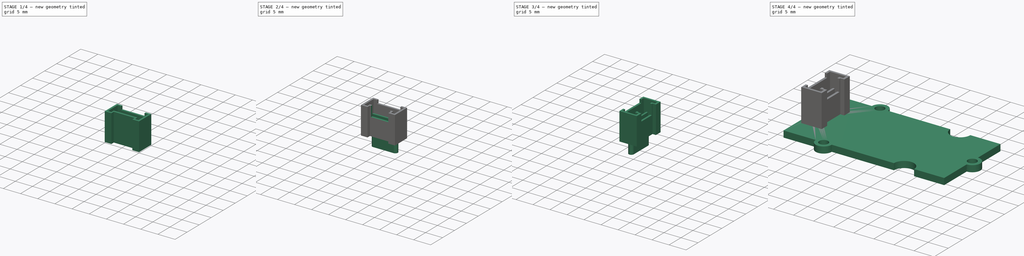
[diagram: build sequence overview — one tinted view per stage of 4, left to right]
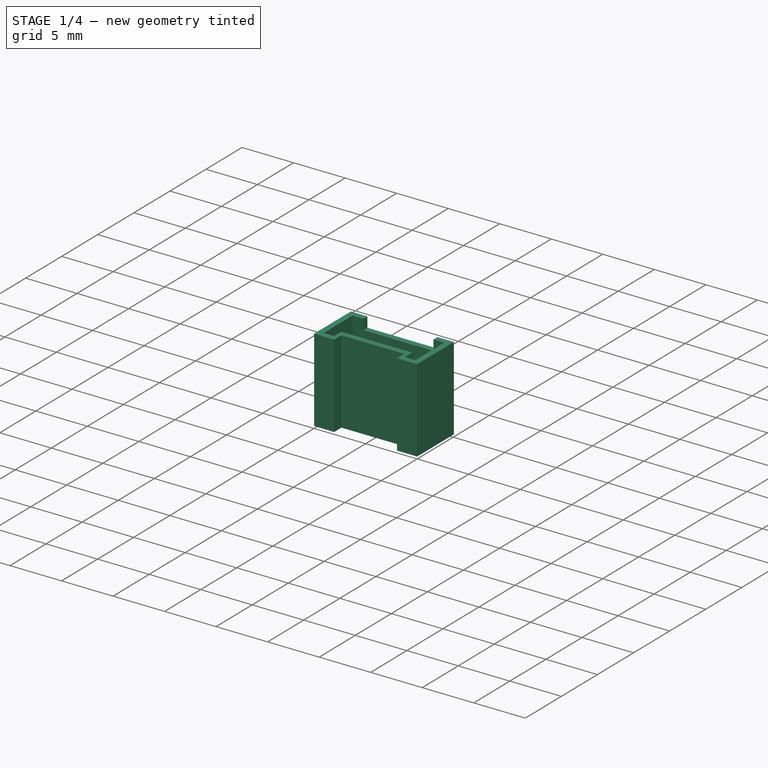
[diagram: stage 1 of 4 — iso view after this stage's code; geometry added in this stage tinted green]
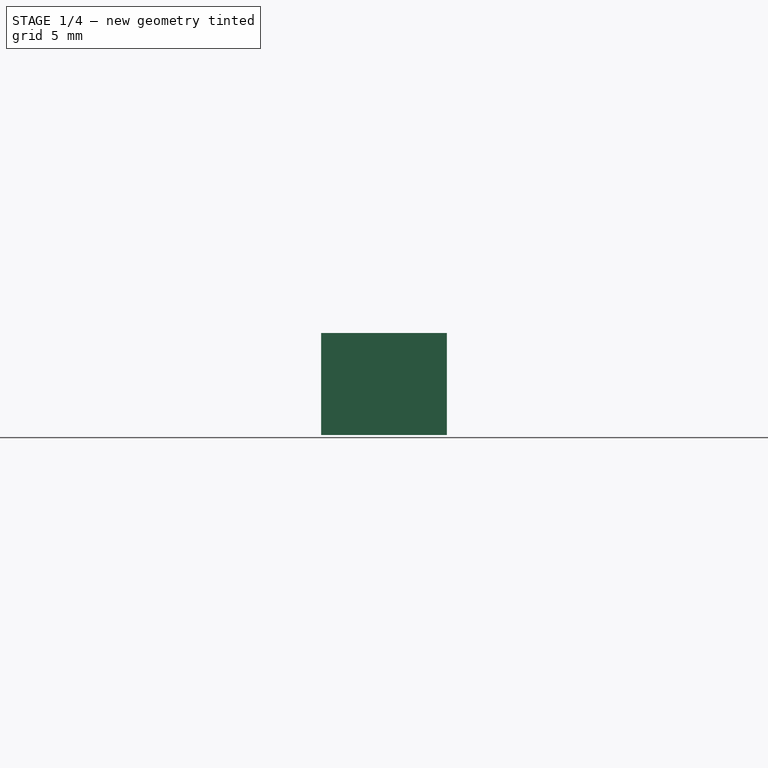
[diagram: stage 1 of 4 — front view after this stage's code; geometry added in this stage tinted green]
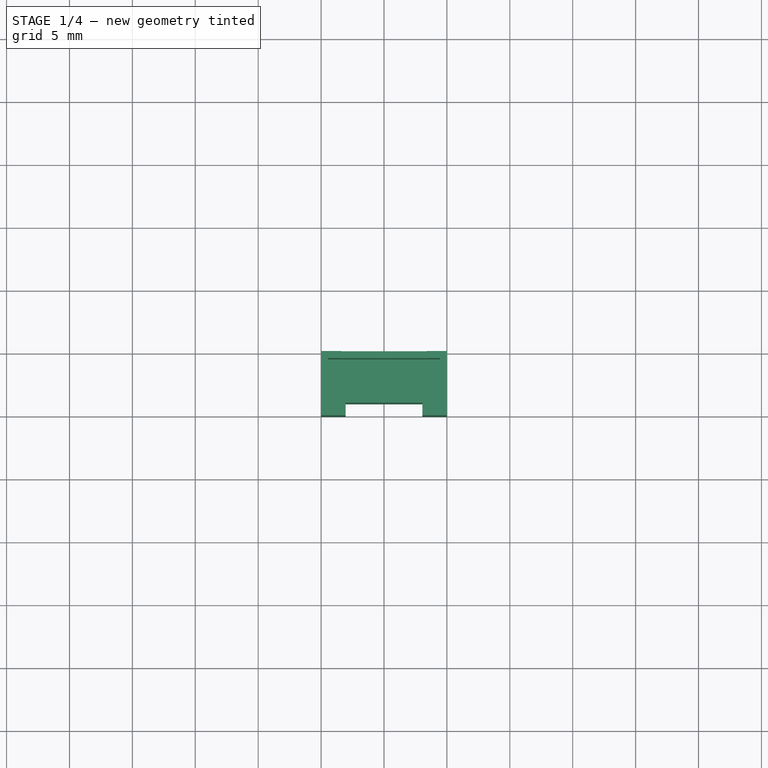
[diagram: stage 1 of 4 — top view after this stage's code; geometry added in this stage tinted green]
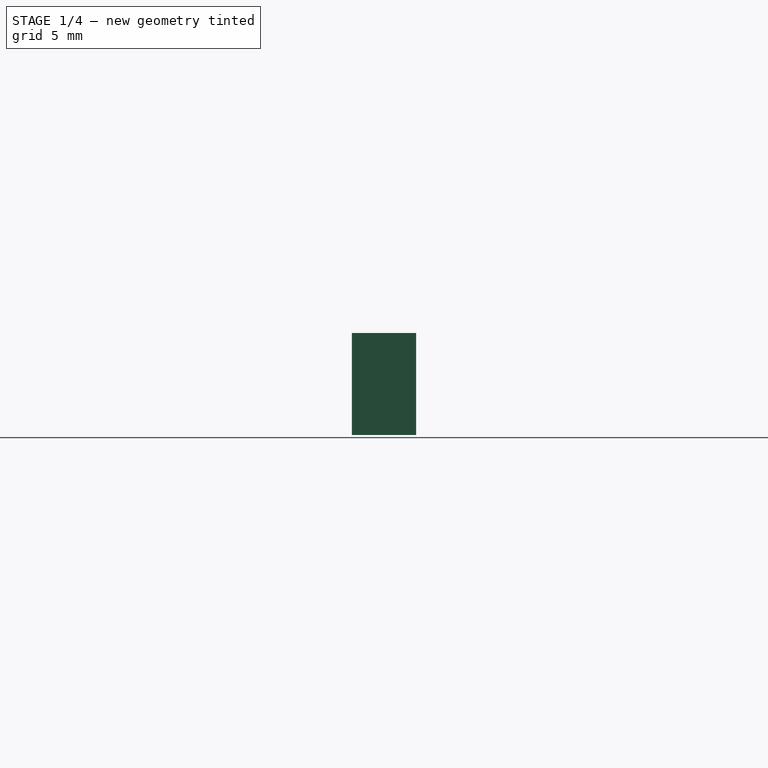
[diagram: stage 1 of 4 — right view after this stage's code; geometry added in this stage tinted green]
FCSTD DOCUMENT  (FreeCAD 0.19R24276 (Git))
Label: Grove_I2CHub6
License: All rights reserved
LicenseURL: http://en.wikipedia.org/wiki/All_rights_reserved
objects: Sketcher::SketchObject×8, PartDesign::Body×7, PartDesign::FeatureBase×5, PartDesign::Pad×4, PartDesign::Pocket×4, App::Part×1
note: 36 computed .brp shape members not serialized (recipe doc carries the construction recipe); baked Part::Feature solids carry a one-line shape summary decoded from their .brp

FEATURE [PartDesign::Body] Body  label="GroveDBoard"
  Group = -> [Sketch,Pad,Sketch001,Pocket]
  Origin = -> Origin001
  Tip = -> Pocket
FEATURE [Sketcher::SketchObject] Sketch008
  FullyConstrained = true
  MapMode = 5
  Support = -> [XY_Plane007]
  sketch-geometry (8):
    g0: LineSegment StartX=-5 StartY=0 StartZ=0 EndX=-3.05 EndY=0 EndZ=0
    g1: LineSegment StartX=3.05 StartY=0 StartZ=0 EndX=5 EndY=0 EndZ=0
    g2: LineSegment StartX=-5 StartY=0 StartZ=0 EndX=-5 EndY=5.1 EndZ=0
    g3: LineSegment StartX=-5 StartY=5.1 StartZ=0 EndX=5 EndY=5.1 EndZ=0
    g4: LineSegment StartX=5 StartY=5.1 StartZ=0 EndX=5 EndY=0 EndZ=0
    g5: LineSegment StartX=3.05 StartY=0 StartZ=0 EndX=3.05 EndY=1 EndZ=0
    g6: LineSegment StartX=3.05 StartY=1 StartZ=0 EndX=-3.05 EndY=1 EndZ=0
    g7: LineSegment StartX=-3.05 StartY=1 StartZ=0 EndX=-3.05 EndY=0 EndZ=0
  constraints (23):
    c: PointOnObject(g0,g-1)
    c: PointOnObject(g1,g-1)
    c: PointOnObject(g0,g-1)
    c: Coincident(g2,g0)
    c: Vertical(g2)
    c: Coincident(g3,g2)
    c: Horizontal(g3)
    c: Coincident(g4,g3)
    c: Coincident(g4,g1)
    c: Vertical(g4)
    c: Coincident(g5,g1)
    c: Vertical(g5)
    c: Coincident(g6,g5)
    c: Horizontal(g6)
    c: Coincident(g7,g6)
    c: Coincident(g7,g0)
    c: Vertical(g7)
    c: Equal(g0,g1)
    c: Symmetric(g0,g1,g-1)
    c: Distance(g4) = 5.1
    c: Distance(g6) = 6.1
    c: Distance(g3) = 10
    c: Distance(g7) = 1
FEATURE [PartDesign::Pad] Pad005
  Direction = (1,1,1)
  Length = 8.1
  Length2 = 100
  Profile = -> Sketch008
  Type = 0
FEATURE [Sketcher::SketchObject] Sketch009
  FullyConstrained = true
  MapMode = 5
  Placement = pos=(0,0,8.1) rot=(0,0,1;0rad)
  Support = -> [Pad005]
  sketch-geometry (10):
    g0: LineSegment StartX=-4.45 StartY=0.55 StartZ=0 EndX=-3.45 EndY=0.55 EndZ=0
    g1: LineSegment StartX=-3.45 StartY=0.55 StartZ=0 EndX=-3.45 EndY=1.55 EndZ=0
    g2: LineSegment StartX=-3.45 StartY=1.55 StartZ=0 EndX=3.45 EndY=1.55 EndZ=0
    g3: LineSegment StartX=3.45 StartY=1.55 StartZ=0 EndX=3.45 EndY=0.55 EndZ=0
    g4: LineSegment StartX=3.45 StartY=0.55 StartZ=0 EndX=4.45 EndY=0.55 EndZ=0
    g5: LineSegment StartX=4.45 StartY=0.55 StartZ=0 EndX=4.45 EndY=4.55 EndZ=0
    g6: LineSegment StartX=4.45 StartY=4.55 StartZ=0 EndX=-4.45 EndY=4.55 EndZ=0
    g7: LineSegment StartX=-4.45 StartY=4.55 StartZ=0 EndX=-4.45 EndY=0.55 EndZ=0
    g8: LineSegment StartX=-3.45 StartY=0.55 StartZ=0 EndX=3.45 EndY=0.55 EndZ=0
    g9: LineSegment StartX=0 StartY=0 StartZ=0 EndX=0 EndY=0.55 EndZ=0
  constraints (28):
    c: Horizontal(g0)
    c: Coincident(g1,g0)
    c: Coincident(g2,g1)
    c: Horizontal(g2)
    c: Coincident(g3,g2)
    c: Vertical(g3)
    c: Coincident(g4,g3)
    c: Horizontal(g4)
    c: Coincident(g5,g4)
    c: Vertical(g5)
    c: Coincident(g6,g5)
    c: Horizontal(g6)
    c: Coincident(g7,g6)
    c: Coincident(g7,g0)
    c: Vertical(g7)
    c: Vertical(g1)
    c: Coincident(g8,g0)
    c: Coincident(g8,g3)
    c: Horizontal(g8)
    c: Equal(g0,g4)
    c: Coincident(g9,g-1)
    c: PointOnObject(g9,g-2)
    c: Symmetric(g0,g3,g9)
    c: Distance(g0) = 1
    c: Distance(g1) = 1
    c: Distance(g9) = 0.55
    c: Distance(g6) = 8.9
    c: DistanceY(g2,g5) = 3
FEATURE [PartDesign::Pocket] Pocket003
  BaseFeature = -> Pad005
  Length = 7
  Length2 = 100
  Profile = -> Sketch009
  Type = 0
FEATURE [Sketcher::SketchObject] Sketch010
  FullyConstrained = true
  MapMode = 5
  Placement = pos=(0,0,8.1) rot=(0,0,1;0rad)
  Support = -> [Pocket003]
  sketch-geometry (5):
    g0: LineSegment StartX=0 StartY=0 StartZ=0 EndX=0 EndY=3 EndZ=0
    g1: LineSegment StartX=-3.4 StartY=8 StartZ=0 EndX=3.4 EndY=8 EndZ=0
    g2: LineSegment StartX=3.4 StartY=8 StartZ=0 EndX=3.4 EndY=3 EndZ=0
    g3: LineSegment StartX=3.4 StartY=3 StartZ=0 EndX=-3.4 EndY=3 EndZ=0
    g4: LineSegment StartX=-3.4 StartY=3 StartZ=0 EndX=-3.4 EndY=8 EndZ=0
  constraints (14):
    c: Coincident(g0,g-1)
    c: PointOnObject(g0,g-2)
    c: Coincident(g1,g2)
    c: Coincident(g2,g3)
    c: Coincident(g3,g4)
    c: Coincident(g4,g1)
    c: Horizontal(g1)
    c: Horizontal(g3)
    c: Vertical(g2)
    c: Vertical(g4)
    c: Symmetric(g3,g2,g0)
    c: Distance(g0) = 3
    c: Distance(g2) = 5
    c: Distance(g1) = 6.8
FEATURE [PartDesign::Pocket] Pocket004
  BaseFeature = -> Pocket003
  Length = 1
  Length2 = 100
  Profile = -> Sketch010
  Type = 0
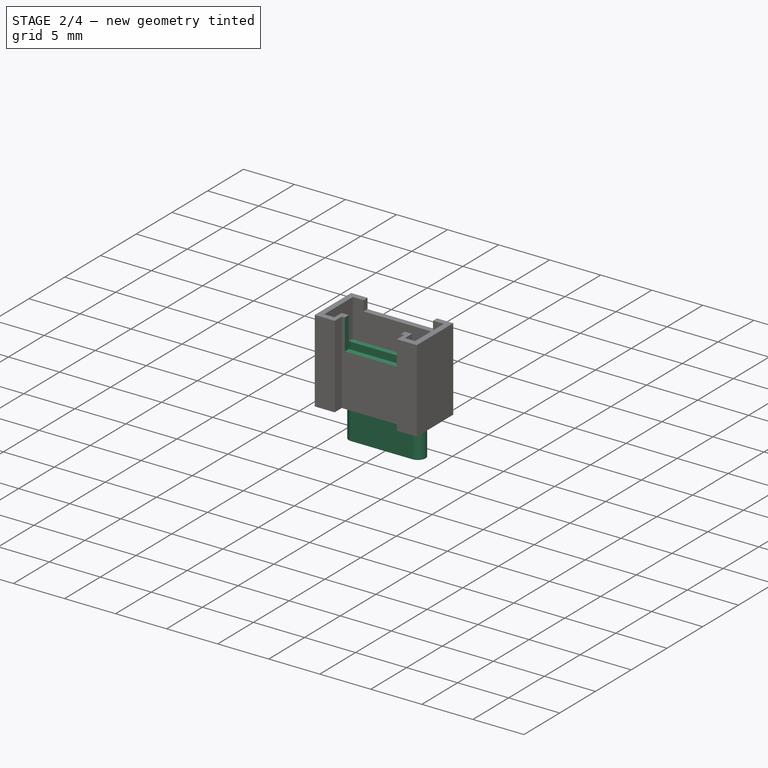
[diagram: stage 2 of 4 — iso view after this stage's code; geometry added in this stage tinted green]
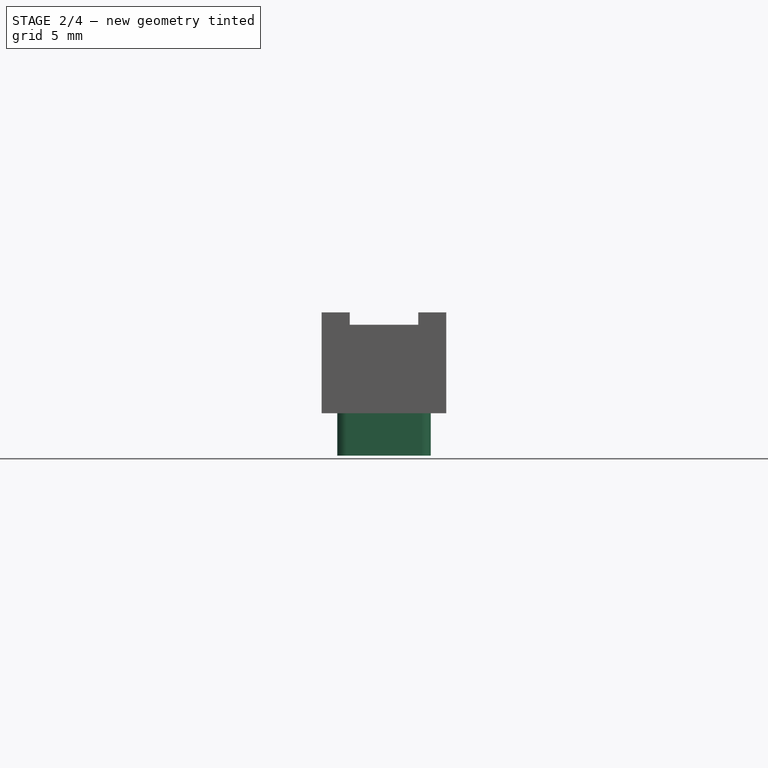
[diagram: stage 2 of 4 — front view after this stage's code; geometry added in this stage tinted green]
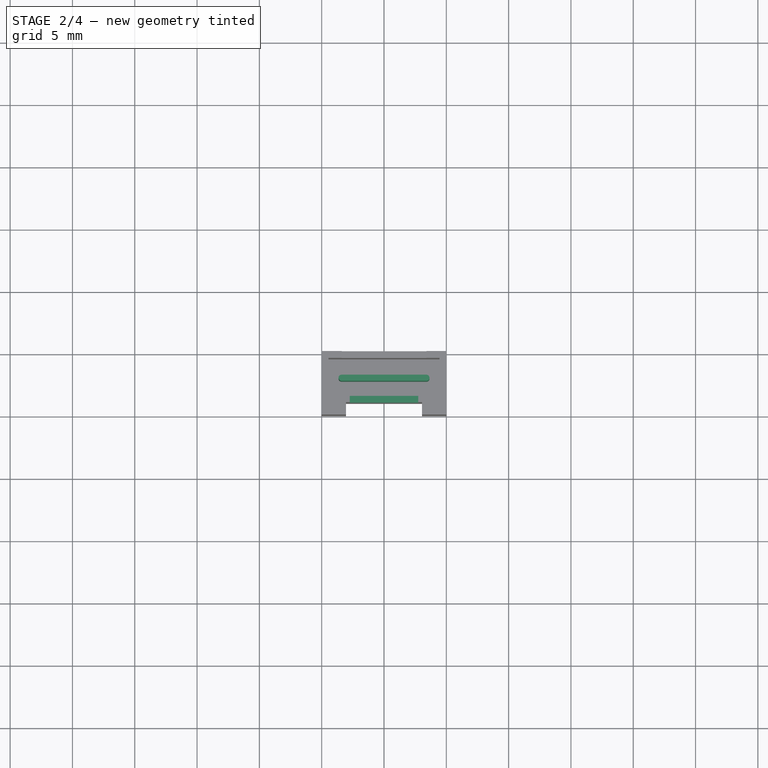
[diagram: stage 2 of 4 — top view after this stage's code; geometry added in this stage tinted green]
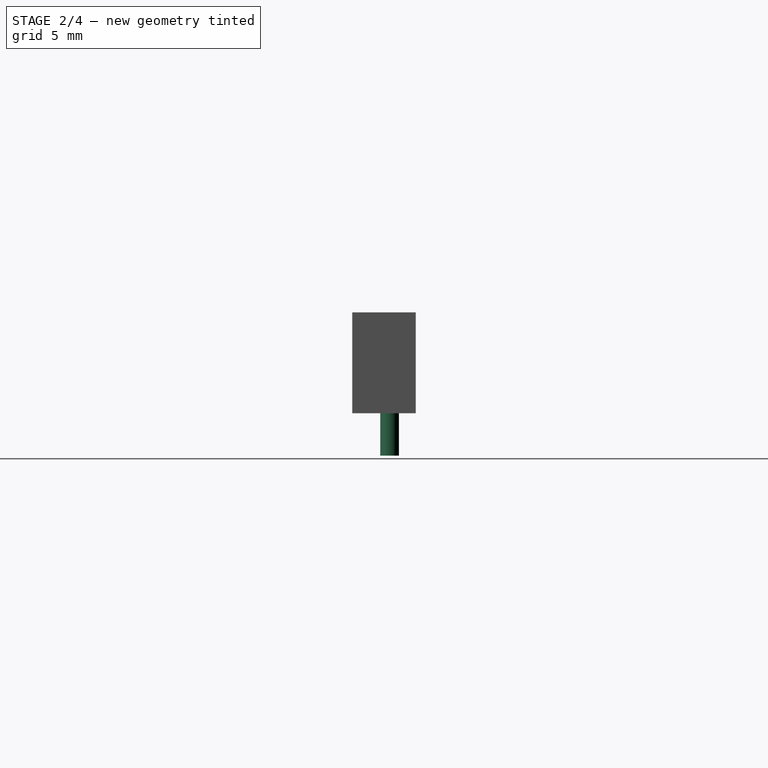
[diagram: stage 2 of 4 — right view after this stage's code; geometry added in this stage tinted green]
FEATURE [Sketcher::SketchObject] Sketch011
  FullyConstrained = true
  MapMode = 5
  Placement = pos=(0,0,8.1) rot=(0,0,1;0rad)
  Support = -> [Pocket004]
  sketch-geometry (4):
    g0: LineSegment StartX=-2.75 StartY=3 StartZ=0 EndX=2.75 EndY=3 EndZ=0
    g1: LineSegment StartX=2.75 StartY=3 StartZ=0 EndX=2.75 EndY=0 EndZ=0
    g2: LineSegment StartX=2.75 StartY=0 StartZ=0 EndX=-2.75 EndY=0 EndZ=0
    g3: LineSegment StartX=-2.75 StartY=0 StartZ=0 EndX=-2.75 EndY=3 EndZ=0
  constraints (11):
    c: Coincident(g0,g1)
    c: Coincident(g1,g2)
    c: Coincident(g2,g3)
    c: Coincident(g3,g0)
    c: Horizontal(g0)
    c: Horizontal(g2)
    c: Vertical(g1)
    c: Vertical(g3)
    c: Symmetric(g2,g1,g-1)
    c: Distance(g1) = 3
    c: Distance(g0) = 5.5
FEATURE [PartDesign::Pocket] Pocket005
  BaseFeature = -> Pocket004
  Length = 3
  Length2 = 100
  Profile = -> Sketch011
  Type = 0
FEATURE [Sketcher::SketchObject] Sketch012
  FullyConstrained = true
  MapMode = 5
  Placement = pos=(0,0,1.1) rot=(0,0,1;0rad)
  Support = -> [Pocket005]
  sketch-geometry (5):
    g0: ArcOfCircle CenterX=-3.4 CenterY=3 CenterZ=0 NormalX=0 NormalY=0 NormalZ=1 AngleXU=0 Radius=0.25 StartAngle=1.5708 EndAngle=4.71239
    g1: ArcOfCircle CenterX=3.4 CenterY=3 CenterZ=0 NormalX=0 NormalY=0 NormalZ=1 AngleXU=0 Radius=0.25 StartAngle=4.71239 EndAngle=7.85398
    g2: LineSegment StartX=-3.4 StartY=2.75 StartZ=0 EndX=3.4 EndY=2.75 EndZ=0
    g3: LineSegment StartX=-3.4 StartY=3.25 StartZ=0 EndX=3.4 EndY=3.25 EndZ=0
    g4: LineSegment StartX=0 StartY=0 StartZ=0 EndX=0 EndY=2.75 EndZ=0
  constraints (12):
    c: Tangent(g0,g3) = 1.5708
    c: Tangent(g0,g2) = -1.5708
    c: Tangent(g2,g1) = -1.5708
    c: Tangent(g3,g1) = 1.5708
    c: Horizontal(g2)
    c: Equal(g0,g1)
    c: Coincident(g4,g-1)
    c: PointOnObject(g4,g-2)
    c: Symmetric(g0,g1,g4)
    c: DistanceY(g-1,g1) = 3
    c: DistanceY(g1,g1) = 0.5
    c: DistanceX(g0,g1) = 6.8
FEATURE [PartDesign::Pad] Pad006
  BaseFeature = -> Pocket005
  Direction = (1,1,1)
  Length = 4
  Length2 = 100
  Profile = -> Sketch012
  Type = 0
FEATURE [Sketcher::SketchObject] Sketch013
  FullyConstrained = true
  MapMode = 5
  Support = -> [XY_Plane007]
  sketch-geometry (5):
    g0: ArcOfCircle CenterX=-3 CenterY=3 CenterZ=0 NormalX=0 NormalY=0 NormalZ=1 AngleXU=0 Radius=0.75 StartAngle=1.5708 EndAngle=4.71239
    g1: ArcOfCircle CenterX=3 CenterY=3 CenterZ=0 NormalX=0 NormalY=0 NormalZ=1 AngleXU=0 Radius=0.75 StartAngle=4.71239 EndAngle=7.85398
    g2: LineSegment StartX=-3 StartY=2.25 StartZ=0 EndX=3 EndY=2.25 EndZ=0
    g3: LineSegment StartX=-3 StartY=3.75 StartZ=0 EndX=3 EndY=3.75 EndZ=0
    g4: LineSegment StartX=0 StartY=0 StartZ=0 EndX=0 EndY=3 EndZ=0
  constraints (12):
    c: Tangent(g0,g3) = 1.5708
    c: Tangent(g0,g2) = -1.5708
    c: Tangent(g2,g1) = -1.5708
    c: Tangent(g3,g1) = 1.5708
    c: Horizontal(g2)
    c: Equal(g0,g1)
    c: Coincident(g4,g-1)
    c: PointOnObject(g4,g-2)
    c: Symmetric(g0,g1,g4)
    c: Distance(g4) = 3
    c: DistanceY(g1,g1) = 1.5
    c: DistanceX(g0,g1) = 6
FEATURE [PartDesign::Pad] Pad007
  BaseFeature = -> Pad006
  Direction = (1,1,1)
  Length = 3.4
  Length2 = 100
  Profile = -> Sketch013
  Reversed = true
  Type = 0
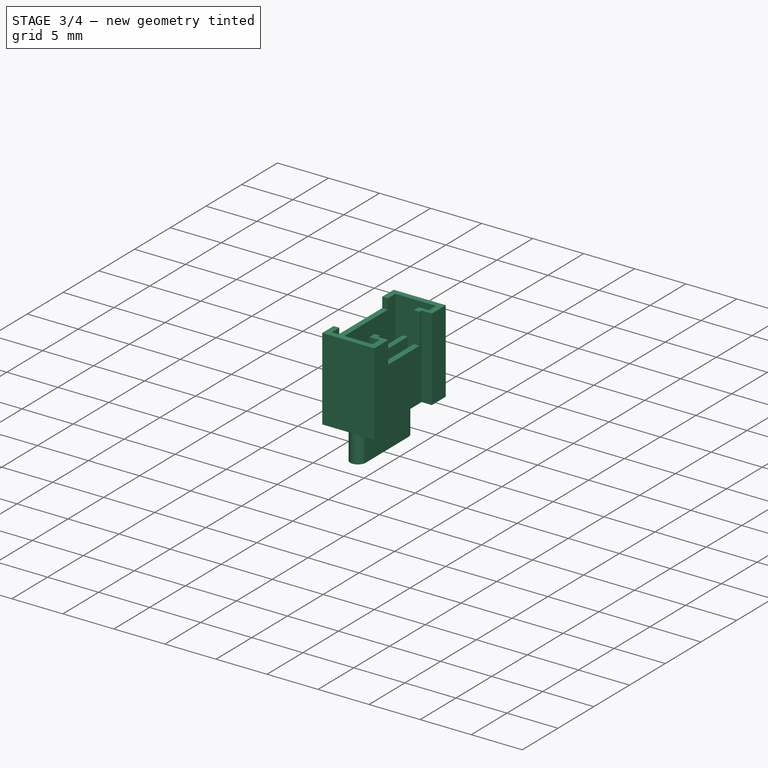
[diagram: stage 3 of 4 — iso view after this stage's code; geometry added in this stage tinted green]
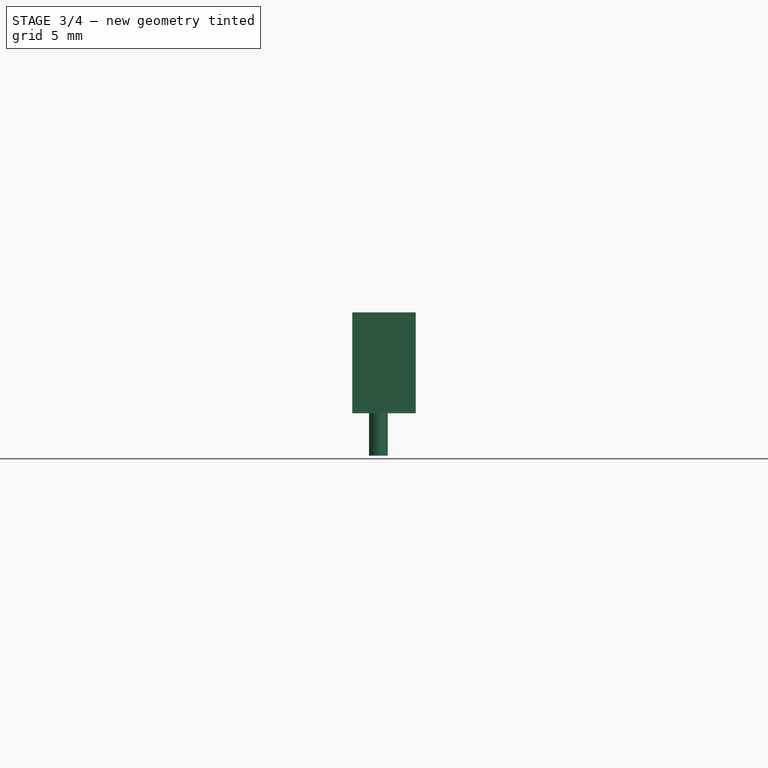
[diagram: stage 3 of 4 — front view after this stage's code; geometry added in this stage tinted green]
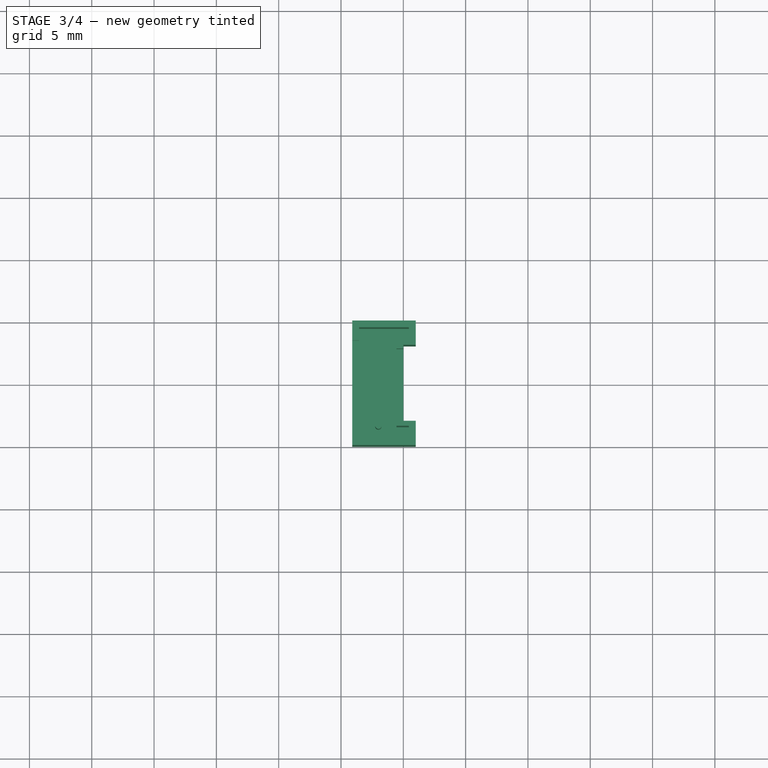
[diagram: stage 3 of 4 — top view after this stage's code; geometry added in this stage tinted green]
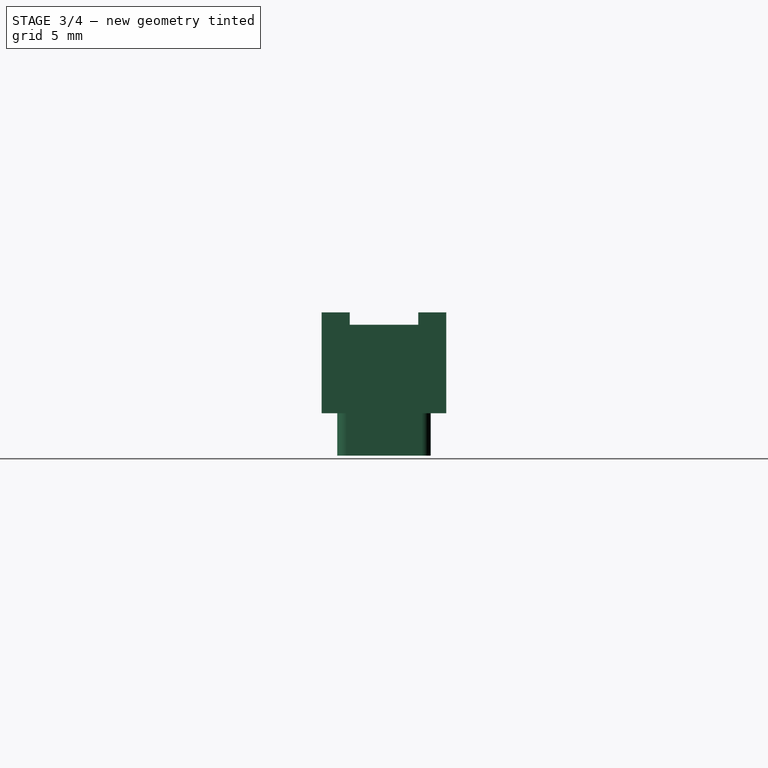
[diagram: stage 3 of 4 — right view after this stage's code; geometry added in this stage tinted green]
FEATURE [PartDesign::Body] Body006  label="GroveHeader2"
  BaseFeature = -> Body005
  Group = -> [Clone]
  Origin = -> Origin008
  Placement = pos=(6.4,0,0) rot=(0,0,1;0rad)
  Tip = -> Clone
FEATURE [PartDesign::FeatureBase] Clone001
  BaseFeature = -> Body005
  Placement = pos=(-14,0,1.6) rot=(0,0,1;1.5708rad)
FEATURE [PartDesign::Body] Body007  label="GroveHeader3"
  BaseFeature = -> Body005
  Group = -> [Clone001]
  Origin = -> Origin009
  Placement = pos=(12.6,0,0) rot=(0,0,1;0rad)
  Tip = -> Clone001
FEATURE [PartDesign::FeatureBase] Clone002
  BaseFeature = -> Body005
  Placement = pos=(-14,0,1.6) rot=(0,0,1;1.5708rad)
FEATURE [PartDesign::Body] Body008  label="GroveHeader4"
  BaseFeature = -> Body005
  Group = -> [Clone002]
  Origin = -> Origin010
  Placement = pos=(18.8,0,0) rot=(0,0,1;0rad)
  Tip = -> Clone002
FEATURE [PartDesign::FeatureBase] Clone003
  BaseFeature = -> Body005
  Placement = pos=(-14,0,1.6) rot=(0,0,1;1.5708rad)
FEATURE [PartDesign::Body] Body009  label="GroveHeader5"
  BaseFeature = -> Body005
  Group = -> [Clone003]
  Origin = -> Origin011
  Placement = pos=(25,0,0) rot=(0,0,1;0rad)
  Tip = -> Clone003
FEATURE [PartDesign::FeatureBase] Clone004
  BaseFeature = -> Body005
  Placement = pos=(-14,0,1.6) rot=(0,0,1;1.5708rad)
FEATURE [PartDesign::Body] Body010  label="GroveHeader6"
  BaseFeature = -> Body005
  Group = -> [Clone004]
  Origin = -> Origin012
  Placement = pos=(31.2,0,0) rot=(0,0,1;0rad)
  Tip = -> Clone004
FEATURE [App::Part] Part  label="GroveDoubleBoard"
  Group = -> [Body,Body005,Body006,Body007,Body008,Body009,Body010]
  Origin = -> Origin
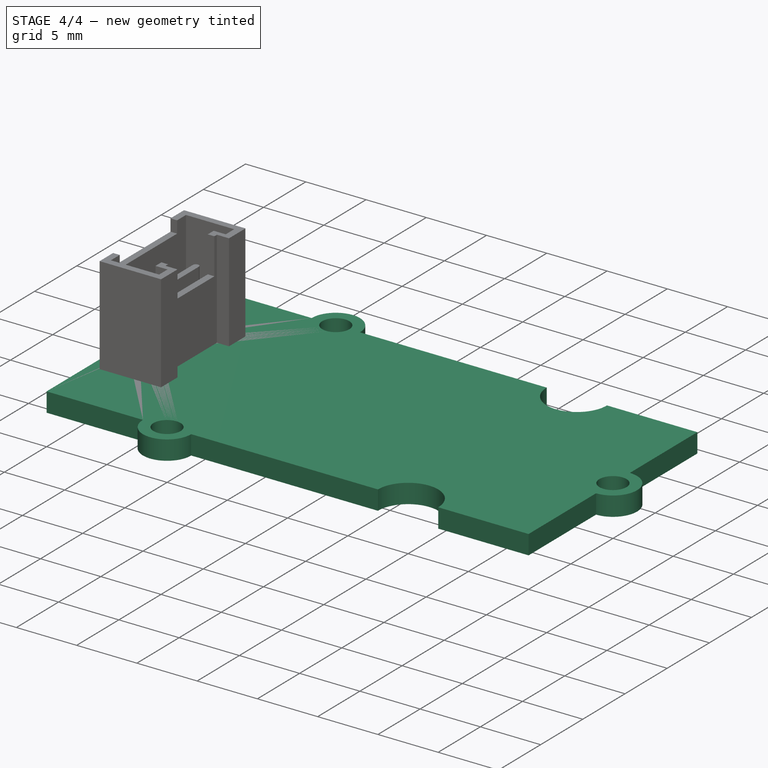
[diagram: stage 4 of 4 — iso view after this stage's code; geometry added in this stage tinted green]
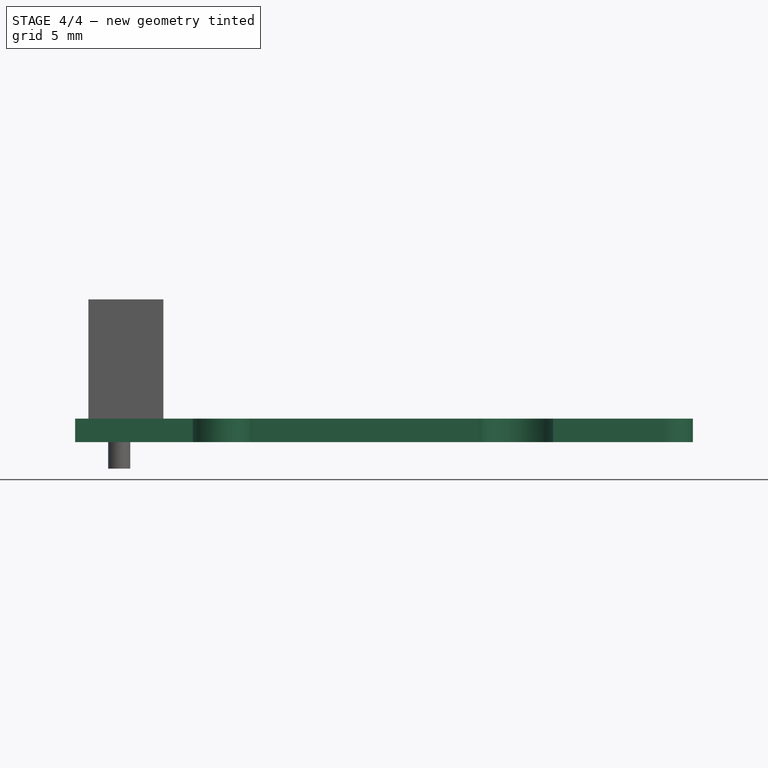
[diagram: stage 4 of 4 — front view after this stage's code; geometry added in this stage tinted green]
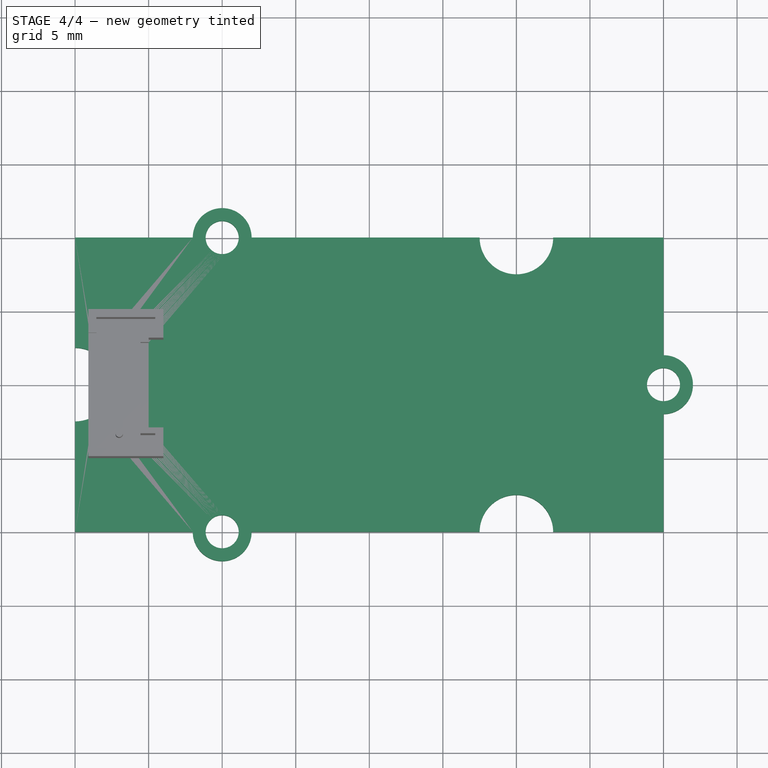
[diagram: stage 4 of 4 — top view after this stage's code; geometry added in this stage tinted green]
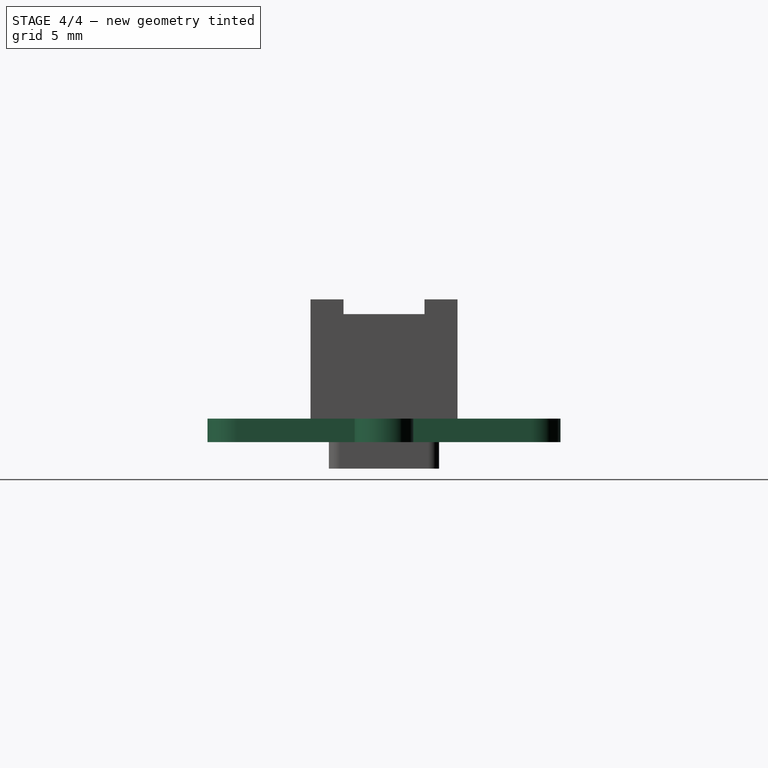
[diagram: stage 4 of 4 — right view after this stage's code; geometry added in this stage tinted green]
FEATURE [Sketcher::SketchObject] Sketch
  FullyConstrained = true
  MapMode = 5
  Support = -> [XY_Plane001]
  sketch-geometry (26):
    g0: LineSegment StartX=-20 StartY=10 StartZ=0 EndX=-12 EndY=10 EndZ=0
    g1: LineSegment StartX=-8 StartY=10 StartZ=0 EndX=0 EndY=10 EndZ=0
    g2: LineSegment StartX=0 StartY=10 StartZ=0 EndX=7.5 EndY=10 EndZ=0
    g3: LineSegment StartX=12.5 StartY=10 StartZ=0 EndX=20 EndY=10 EndZ=0
    g4: LineSegment StartX=20 StartY=-10 StartZ=0 EndX=12.5 EndY=-10 EndZ=0
    g5: LineSegment StartX=7.5 StartY=-10 StartZ=0 EndX=0 EndY=-10 EndZ=0
    g6: LineSegment StartX=0 StartY=-10 StartZ=0 EndX=-8 EndY=-10 EndZ=0
    g7: LineSegment StartX=-12 StartY=-10 StartZ=0 EndX=-20 EndY=-10 EndZ=0
    g8: LineSegment StartX=-12 StartY=10 StartZ=0 EndX=-8 EndY=10 EndZ=0
    g9: LineSegment StartX=-12 StartY=-10 StartZ=0 EndX=-8 EndY=-10 EndZ=0
    g10: LineSegment StartX=7.5 StartY=10 StartZ=0 EndX=12.5 EndY=10 EndZ=0
    g11: LineSegment StartX=7.5 StartY=-10 StartZ=0 EndX=12.5 EndY=-10 EndZ=0
    g12: LineSegment StartX=20 StartY=10 StartZ=0 EndX=20 EndY=2 EndZ=0
    g13: LineSegment StartX=20 StartY=-10 StartZ=0 EndX=20 EndY=-2 EndZ=0
    g14: LineSegment StartX=-20 StartY=-2.5 StartZ=0 EndX=-20 EndY=2.5 EndZ=0
    g15: LineSegment StartX=20 StartY=2 StartZ=0 EndX=20 EndY=-2 EndZ=0
    g16: ArcOfCircle CenterX=20 CenterY=0 CenterZ=0 NormalX=0 NormalY=0 NormalZ=1 AngleXU=0 Radius=2 StartAngle=4.71239 EndAngle=7.85398
    g17: ArcOfCircle CenterX=-10 CenterY=10 CenterZ=0 NormalX=0 NormalY=0 NormalZ=1 AngleXU=0 Radius=2 StartAngle=-9e-16 EndAngle=3.14159
    g18: ArcOfCircle CenterX=-10 CenterY=-10 CenterZ=0 NormalX=0 NormalY=0 NormalZ=1 AngleXU=0 Radius=2 StartAngle=3.14159 EndAngle=6.28319
    g19: ArcOfCircle CenterX=10 CenterY=10 CenterZ=0 NormalX=0 NormalY=0 NormalZ=1 AngleXU=0 Radius=2.5 StartAngle=3.14159 EndAngle=6.28319
    g20: ArcOfCircle CenterX=10 CenterY=-10 CenterZ=0 NormalX=0 NormalY=0 NormalZ=1 AngleXU=0 Radius=2.5 StartAngle=1e-15 EndAngle=3.14159
    g21: LineSegment StartX=-10 StartY=10 StartZ=0 EndX=-10 EndY=-10 EndZ=0
    g22: LineSegment StartX=10 StartY=10 StartZ=0 EndX=10 EndY=-10 EndZ=0
    g23: LineSegment StartX=-20 StartY=10 StartZ=0 EndX=-20 EndY=2.5 EndZ=0
    g24: LineSegment StartX=-20 StartY=-10 StartZ=0 EndX=-20 EndY=-2.5 EndZ=0
    g25: ArcOfCircle CenterX=-20 CenterY=0 CenterZ=0 NormalX=0 NormalY=0 NormalZ=1 AngleXU=0 Radius=2.5 StartAngle=4.71239 EndAngle=7.85398
  constraints (76):
    c: Horizontal(g0)
    c: PointOnObject(g1,g-2)
    c: Horizontal(g1)
    c: Coincident(g2,g1)
    c: Horizontal(g2)
    c: Horizontal(g3)
    c: Horizontal(g4)
    c: PointOnObject(g5,g-2)
    c: Horizontal(g5)
    c: Coincident(g6,g5)
    c: Horizontal(g6)
    c: Horizontal(g7)
    c: Coincident(g8,g0)
    c: Coincident(g8,g1)
    c: Horizontal(g8)
    c: Coincident(g9,g7)
    c: Coincident(g9,g6)
    c: Coincident(g10,g2)
    c: Coincident(g10,g3)
    c: Horizontal(g10)
    c: Coincident(g11,g5)
    c: Coincident(g11,g4)
    c: Horizontal(g11)
    c: Horizontal(g9)
    c: Coincident(g12,g3)
    c: Coincident(g13,g4)
    c: Vertical(g13)
    c: Vertical(g14)
    c: Coincident(g15,g12)
    c: Coincident(g15,g13)
    c: Vertical(g15)
    c: Vertical(g12)
    c: PointOnObject(g16,g-1)
    c: Coincident(g16,g12)
    c: Coincident(g16,g13)
    c: PointOnObject(g16,g15)
    c: Coincident(g17,g0)
    c: Coincident(g17,g1)
    c: Coincident(g18,g7)
    c: Coincident(g18,g6)
    c: Coincident(g19,g2)
    c: Coincident(g19,g3)
    c: Coincident(g20,g5)
    c: Coincident(g20,g4)
    c: Coincident(g21,g17)
    c: Coincident(g21,g18)
    c: Vertical(g21)
    c: Coincident(g22,g19)
    c: Coincident(g22,g20)
    c: Vertical(g22)
    c: Equal(g17,g18)
    c: Equal(g18,g16)
    c: Equal(g20,g19)
    c: PointOnObject(g19,g10)
    c: PointOnObject(g20,g11)
    c: PointOnObject(g17,g8)
    c: PointOnObject(g18,g9)
    c: Diameter(g17) = 4
    c: Equal(g1,g0)
    c: Equal(g2,g3)
    c: DistanceX(g0,g3) = 40
    c: DistanceX(g1,g3) = 20
    c: DistanceY(g4,g3) = 20
    c: Coincident(g23,g0)
    c: Vertical(g23)
    c: Coincident(g24,g7)
    c: Vertical(g24)
    c: Equal(g23,g24)
    c: PointOnObject(g25,g-1)
    c: Coincident(g25,g23)
    c: Coincident(g25,g24)
    c: Diameter(g19) = 5
    c: Equal(g25,g19)
    c: PointOnObject(g25,g14)
    c: Coincident(g14,g23)
    c: Coincident(g14,g24)
FEATURE [PartDesign::Pad] Pad
  Direction = (1,1,1)
  Length = 1.6
  Length2 = 100
  Profile = -> Sketch
  Type = 0
FEATURE [Sketcher::SketchObject] Sketch001
  FullyConstrained = true
  MapMode = 5
  Support = -> [XY_Plane001]
  sketch-geometry (6):
    g0: Circle CenterX=-10 CenterY=10 CenterZ=0 NormalX=0 NormalY=0 NormalZ=1 AngleXU=0 Radius=1.125
    g1: Circle CenterX=-10 CenterY=-10 CenterZ=0 NormalX=0 NormalY=0 NormalZ=1 AngleXU=0 Radius=1.125
    g2: Circle CenterX=20 CenterY=0 CenterZ=0 NormalX=0 NormalY=0 NormalZ=1 AngleXU=0 Radius=1.125
    g3: LineSegment StartX=-10 StartY=10 StartZ=0 EndX=-10 EndY=-10 EndZ=0
    g4: LineSegment StartX=0 StartY=0 StartZ=0 EndX=20 EndY=0 EndZ=0
    g5: LineSegment StartX=0 StartY=0 StartZ=0 EndX=-10 EndY=0 EndZ=0
  constraints (15):
    c: Coincident(g3,g0)
    c: Coincident(g3,g1)
    c: Coincident(g4,g-1)
    c: Coincident(g4,g2)
    c: Horizontal(g4)
    c: Coincident(g5,g-1)
    c: PointOnObject(g5,g-1)
    c: Symmetric(g0,g1,g5)
    c: Vertical(g3)
    c: Equal(g2,g0)
    c: Equal(g0,g1)
    c: Diameter(g0) = 2.25
    c: Distance(g5) = 10
    c: Distance(g4) = 20
    c: Distance(g3) = 20
FEATURE [PartDesign::Pocket] Pocket
  BaseFeature = -> Pad
  Length = 5
  Length2 = 100
  Profile = -> Sketch001
  Reversed = true
  Type = 1
FEATURE [PartDesign::Body] Body005  label="GroveHeader1"
  Group = -> [Sketch008,Pad005,Sketch009,Pocket003,Sketch010,Pocket004,Sketch011,Pocket005,Sketch012,Pad006,Sketch013,Pad007]
  Origin = -> Origin007
  Placement = pos=(-13.8,0,1.6) rot=(0,0,1;1.5708rad)
  Tip = -> Pad007
FEATURE [PartDesign::FeatureBase] Clone
  BaseFeature = -> Body005
  Placement = pos=(-14,0,1.6) rot=(0,0,1;1.5708rad)
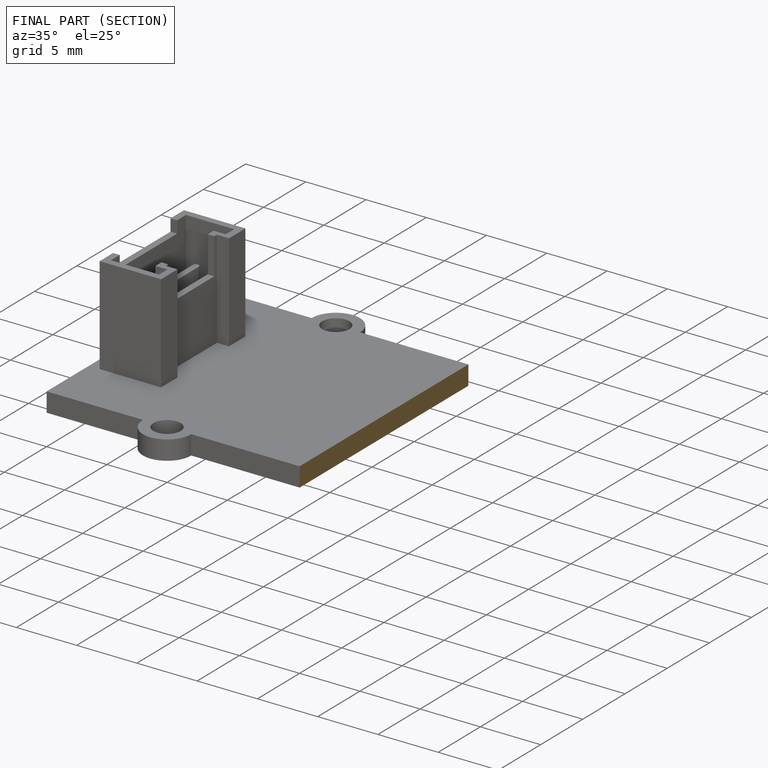
[diagram: finished part — half-section view (interior)]
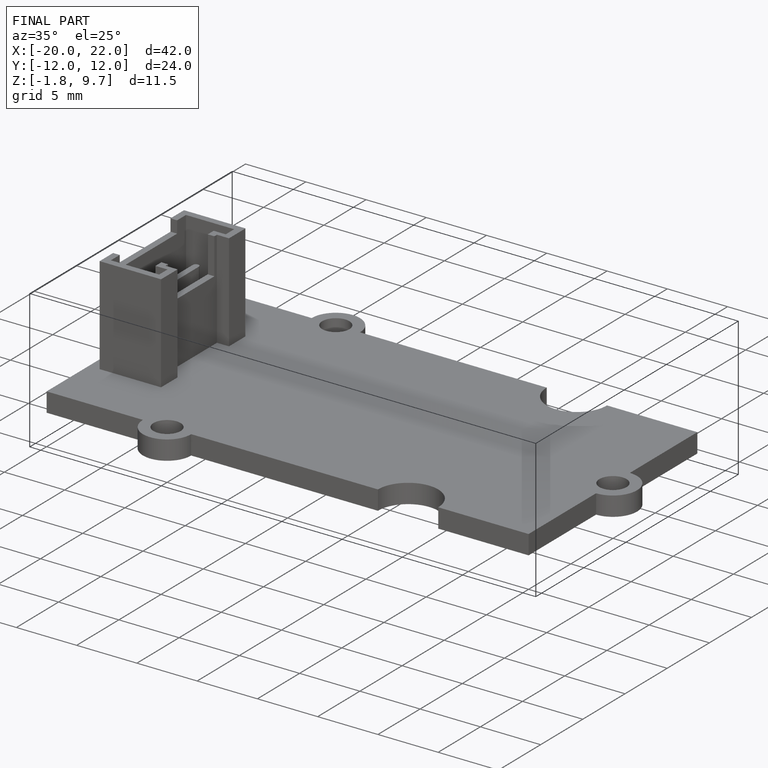
[diagram: finished part — iso view with bounding-box wireframe]
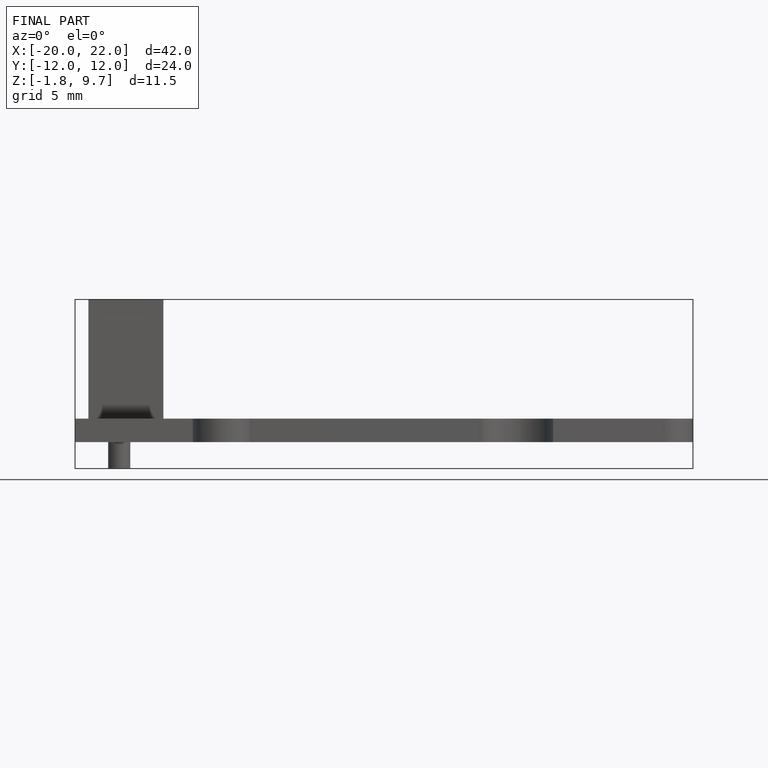
[diagram: finished part — front view with bounding-box wireframe]
